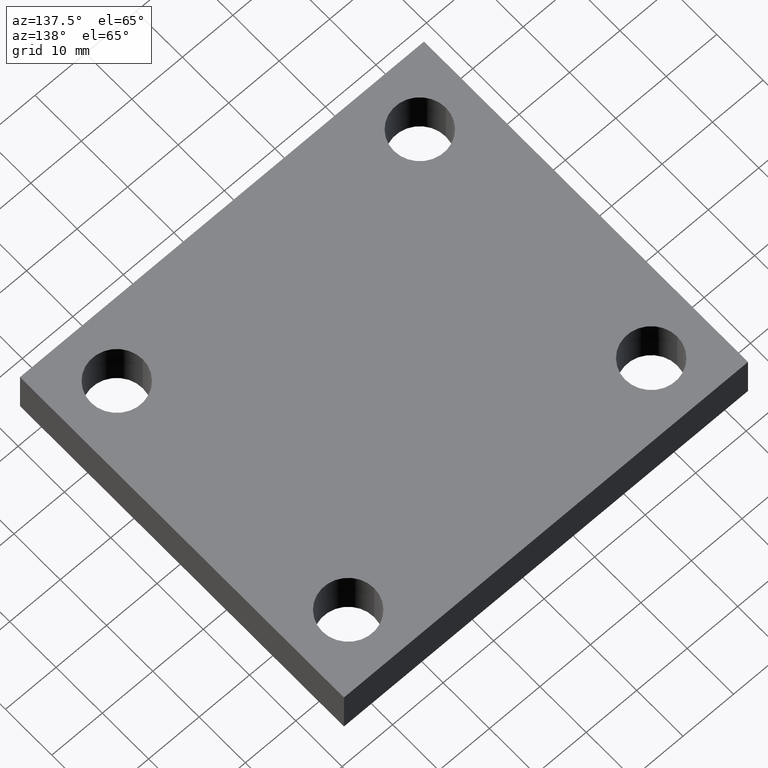
[diagram: clean part render]
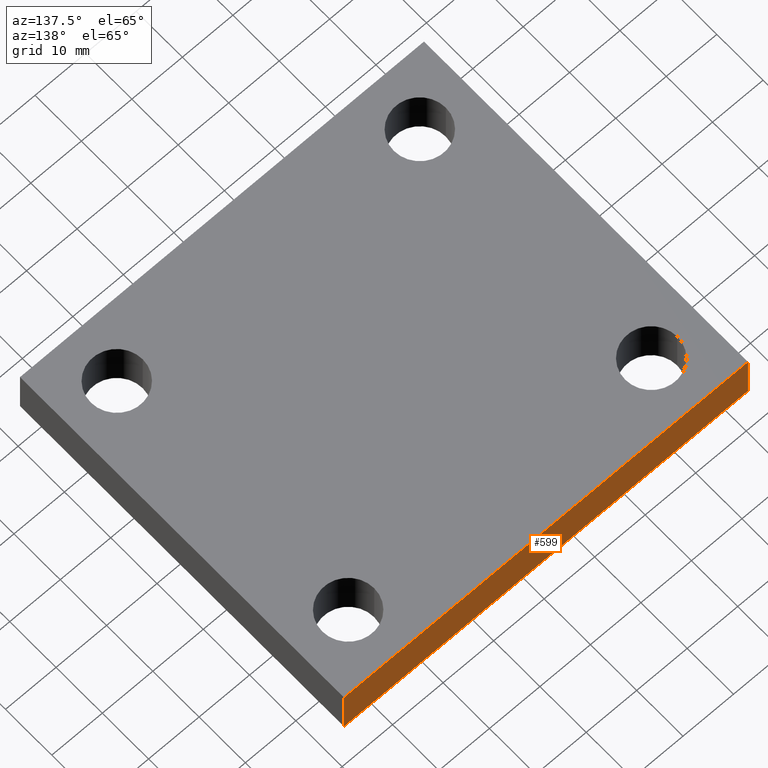
[diagram: same view with one face highlighted and labeled with its STEP entity id]
A machine part, auxiliary view. The second image highlights one B-rep face of the part: STEP entity #599.
In plain terms, the highlighted planar face has unit normal (0, 1, 0).
Its self-contained STEP definition (entity closure, byte-faithful):
#481=CARTESIAN_POINT('',(95.939752180801719,15.972626184769121,10.0));
#482=VERTEX_POINT('',#481);
#499=CARTESIAN_POINT('',(95.939752180801719,15.972626184769121,0.0));
#500=VERTEX_POINT('',#499);
#507=CARTESIAN_POINT('',(95.939752180801719,15.972626184769121,0.0));
#508=DIRECTION('',(0.0,0.0,1.0));
#509=VECTOR('',#508,10.0);
#510=LINE('',#507,#509);
#511=EDGE_CURVE('',#500,#482,#510,.T.);
#552=CARTESIAN_POINT('',(15.939752180801714,15.972626184769103,10.0));
#553=VERTEX_POINT('',#552);
#560=CARTESIAN_POINT('',(15.939752180801714,15.972626184769103,0.0));
#561=VERTEX_POINT('',#560);
#562=CARTESIAN_POINT('',(15.939752180801714,15.972626184769103,0.0));
#563=DIRECTION('',(0.0,0.0,1.0));
#564=VECTOR('',#563,10.0);
#565=LINE('',#562,#564);
#566=EDGE_CURVE('',#561,#553,#565,.T.);
#578=CARTESIAN_POINT('',(15.939752180801714,15.972626184769103,0.0));
#579=DIRECTION('',(0.0,1.0,0.0));
#580=DIRECTION('',(0.0,0.0,1.0));
#581=AXIS2_PLACEMENT_3D('',#578,#579,#580);
#582=PLANE('',#581);
#583=CARTESIAN_POINT('',(15.939752180801714,15.972626184769103,10.0));
#584=DIRECTION('',(1.0,0.0,0.0));
#585=VECTOR('',#584,80.0);
#586=LINE('',#583,#585);
#587=EDGE_CURVE('',#553,#482,#586,.T.);
#588=ORIENTED_EDGE('',*,*,#587,.T.);
#589=ORIENTED_EDGE('',*,*,#511,.F.);
#590=CARTESIAN_POINT('',(95.939752180801719,15.972626184769121,0.0));
#591=DIRECTION('',(-1.0,0.0,0.0));
#592=VECTOR('',#591,80.0);
#593=LINE('',#590,#592);
#594=EDGE_CURVE('',#500,#561,#593,.T.);
#595=ORIENTED_EDGE('',*,*,#594,.T.);
#596=ORIENTED_EDGE('',*,*,#566,.T.);
#597=EDGE_LOOP('',(#588,#589,#595,#596));
#598=FACE_OUTER_BOUND('',#597,.T.);
#599=ADVANCED_FACE('',(#598),#582,.T.);